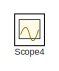
[diagram: root canvas - part 1/2, top right region]
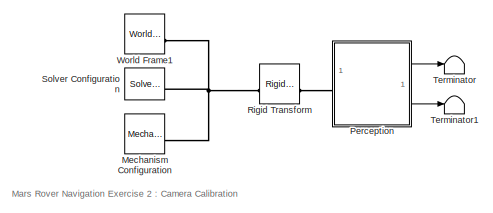
[diagram: root canvas - part 2/2, left side, full height]
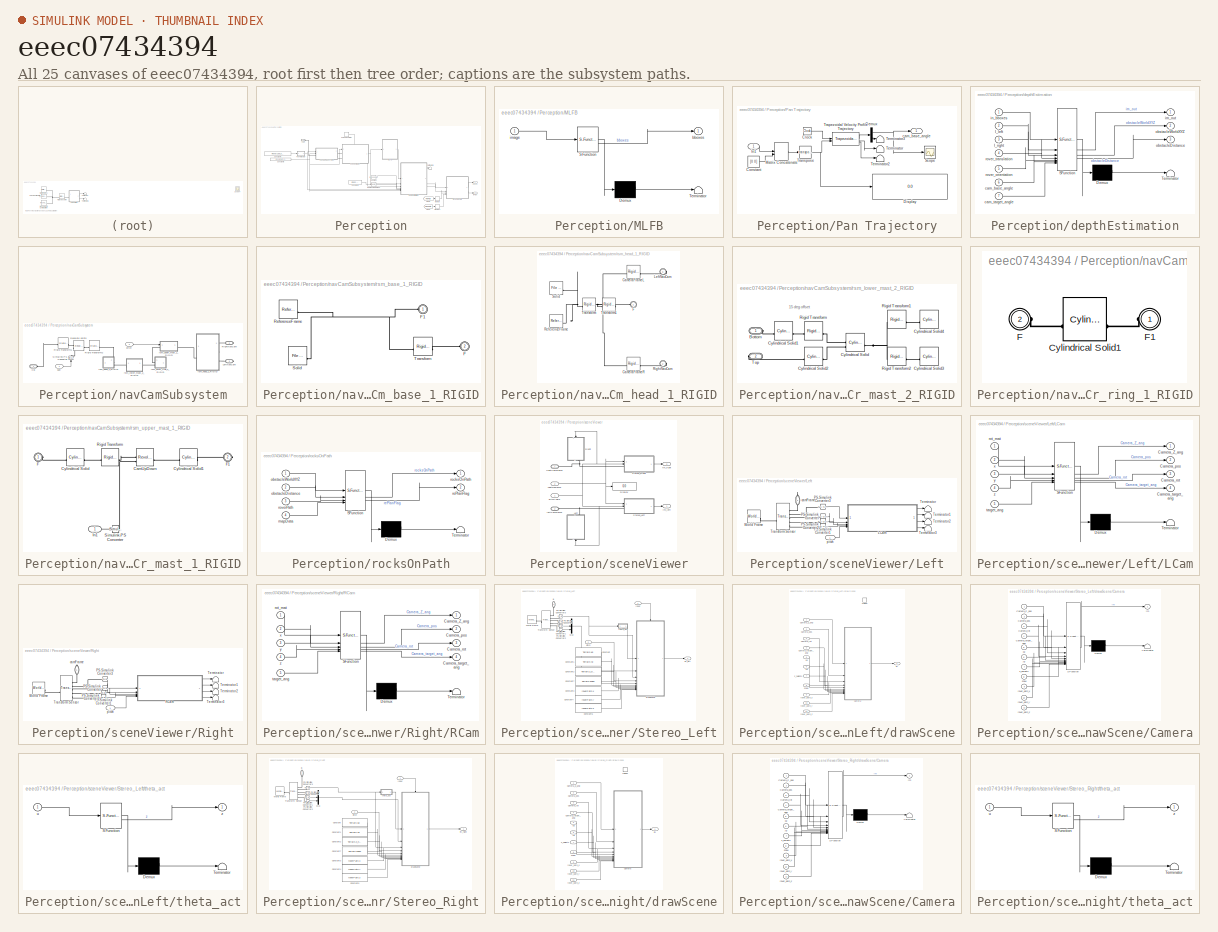
[diagram: thumbnail index - all 25 canvases of the model, root first then tree order]
MODEL slx_eeec07434394
KIND model
CONFIG AbsTol = 1e-3
CONFIG EnableMultiTasking = on
CONFIG FixedStep = 1e-2
CONFIG MaxStep = 0.1
CONFIG MinStep = auto
CONFIG RelTol = 1e-3
CONFIG SampleTimeConstraint = Unconstrained
CONFIG SolverName = ode23t
CONFIG StartFcn = mars_rover_sim_callback
CONFIG StartTime = 0.0
CONFIG StopTime = 120
WORKSPACE source: MATLAB code (in-file)
WORKSPACE code: addpath("mars_rover_helpers");
WORKSPACE mdlpath = ['mars_rover_data',filesep,'mars_rover_arm']
WORKSPACE code: load_system(mdlpath);
WORKSPACE imdata = zeros(3,3,3)
WORKSPACE Kp_steer = 1
WORKSPACE Ki_steer = 1
WORKSPACE Kd_steer = 1
WORKSPACE Kp = 1
WORKSPACE Ki = 1
WORKSPACE Kd = 1
BLOCK [Reference] Mechanism Configuration  REF=sm_lib/Utilities/Mechanism
Configuration
  SourceBlock = sm_lib/Utilities/Mechanism\nConfiguration
  SourceType = Mechanism\nConfiguration
BLOCK [SubSystem] Perception
BLOCK [Constant] Perception/Constant
  Commented = on
  Value = [5 24 2.654]
BLOCK [Constant] Perception/Constant1
  Commented = on
  Value = [ 2.262   -4.305    -0.8046]
BLOCK [Constant] Perception/Constant4
  Value = Rover.cam_pan_range.*Rover.cam_pan_flag
BLOCK [Constant] Perception/Constant5
  Value = Rover.cam_pitch
BLOCK [From] Perception/From3
  Commented = on
  GotoTag = RefPath
BLOCK [From] Perception/From4
  Commented = on
  GotoTag = mapData
BLOCK [SubSystem] Perception/MLFB
  Commented = on
  ErrorFcn = Stateflow.Translate.translate
  PermitHierarchicalResolution = ExplicitOnly
  SFBlockType = MATLAB Function
  TreatAsAtomicUnit = on
BLOCK [Demux] Perception/MLFB/ Demux 
  Outputs = 1
BLOCK [S-Function] Perception/MLFB/ SFunction 
  EnableBusSupport = on
  FunctionName = sf_sfun
  Parameters = roi,thresholdVal
  PortCounts = [1 2]
  SFcnIsStateOwnerBlock = off
  SFunctionDeploymentMode = off
  Tag = Stateflow S-Function 27
BLOCK [Terminator] Perception/MLFB/ Terminator 
BLOCK [Outport] Perception/MLFB/bboxes
BLOCK [Inport] Perception/MLFB/image
BLOCK [Memory] Perception/Memory
  Commented = on
  InitialCondition = [roverPath.x roverPath.y]
BLOCK [Memory] Perception/Memory1
  Commented = on
  InitialCondition = mapData
BLOCK [SubSystem] Perception/Pan Trajectory
BLOCK [Clock] Perception/Pan Trajectory/Clock
BLOCK [Constant] Perception/Pan Trajectory/Constant
  Value = [0 0]
BLOCK [Demux] Perception/Pan Trajectory/Demux
  Outputs = 2
BLOCK [Display] Perception/Pan Trajectory/Display
  Decimation = 1
BLOCK [Inport] Perception/Pan Trajectory/In1
BLOCK [Concatenate] Perception/Pan Trajectory/Matrix Concatenate
  ConcatenateDimension = 2
  Mode = Multidimensional array
BLOCK [Scope] Perception/Pan Trajectory/Scope
  Floating = off
  NumInputPorts = 1
  ScopeSpecificationString = Simulink.scopes.TimeScopeBlockCfg('CurrentConfiguration', extmgr.ConfigurationSet(extmgr.Configuration('Core','General UI',true),extmgr.Configuration('Core','Source UI',true),extmgr.Configuration('Sources','WiredSimulink',true,'DataLoggingVariableName','ScopeData1'),extmgr.Configuration('Visuals','Time Domain',true,'SerializedDisplays',{struct('MinYLimReal','-107.77344','MaxYLimReal','69.96094','Y...<+1422ch>
BLOCK [Terminator] Perception/Pan Trajectory/Terminator
BLOCK [Terminator] Perception/Pan Trajectory/Terminator2
BLOCK [Terminator] Perception/Pan Trajectory/Terminator3
BLOCK [Math] Perception/Pan Trajectory/Transpose
  Operator = transpose
BLOCK [Reference] Perception/Pan Trajectory/Trapezoidal Velocity Profile Trajectory  REF=robotcorelib/Trapezoidal Velocity Profile Trajectory
  SourceBlock = robotcorelib/Trapezoidal Velocity Profile Trajectory
  SourceType = robotics.slcore.internal.block.TrapVelTrajSys
BLOCK [Outport] Perception/Pan Trajectory/cam_base_angle
BLOCK [DiscretePulseGenerator] Perception/Pulse Generator
  Commented = on
  Period = Rover.detection_sample_time
  PhaseDelay = Rover.detection_phaseDelay
  PulseType = Time based
BLOCK [Reference] Perception/Radians to Degrees  REF=simulink_extras/Transformations/Radians
to Degrees
  Commented = on
  SourceBlock = simulink_extras/Transformations/Radians\nto Degrees
  SourceType = RadiansToDegrees
BLOCK [Terminator] Perception/Terminator1
BLOCK [PMIOPort] Perception/cam
  Side = Left
BLOCK [SubSystem] Perception/depthEstimation
  Commented = on
  ErrorFcn = Stateflow.Translate.translate
  PermitHierarchicalResolution = ExplicitOnly
  SFBlockType = MATLAB Function
  TreatAsAtomicUnit = on
BLOCK [Demux] Perception/depthEstimation/ Demux 
  Outputs = 1
BLOCK [S-Function] Perception/depthEstimation/ SFunction 
  EnableBusSupport = on
  FunctionName = sf_sfun
  PortCounts = [7 4]
  SFcnIsStateOwnerBlock = off
  SFunctionDeploymentMode = off
  Tag = Stateflow S-Function 28
BLOCK [Terminator] Perception/depthEstimation/ Terminator 
BLOCK [Inport] Perception/depthEstimation/I_left
  Port = 2
BLOCK [Inport] Perception/depthEstimation/I_right
  Port = 3
BLOCK [Inport] Perception/depthEstimation/cam_base_angle
  Port = 6
BLOCK [Inport] Perception/depthEstimation/cam_target_angle
  Port = 7
BLOCK [Outport] Perception/depthEstimation/im_out
BLOCK [Inport] Perception/depthEstimation/in_bboxes
BLOCK [Outport] Perception/depthEstimation/obstacleDistance
  Port = 3
BLOCK [Outport] Perception/depthEstimation/obstacleWorldXYZ
  Port = 2
BLOCK [Inport] Perception/depthEstimation/rover_orientation
  Port = 5
BLOCK [Inport] Perception/depthEstimation/rover_translation
  Port = 4
BLOCK [SubSystem] Perception/navCamSubsystem
  PortSchema = {"entries":[{"content":{"sides":[{"content":{"connectorIds":["LConn1","In1","In2"]},"type":"ConnectorPlacement.EquallySpacedRectSide","uuid":"2deb6c0b-0fb4-445b-86e3-b1fc7203c2ed"},{"content":{"connectorIds":["RConn1","RConn2"],"side":"RIGHT"},"type":"ConnectorPlacement.EquallySpacedRectSide","uuid":"96d5d272-26bd-434a-b8d4-4dbdb87bfabc"},{"content":{"connectorIds":[],"side":"TOP"},"type":"Connect...<+266ch>
BLOCK [PMIOPort] Perception/navCamSubsystem/CB
  Side = Left
BLOCK [PMIOPort] Perception/navCamSubsystem/LeftNavCam
  Port = 3
  Side = Right
BLOCK [Reference] Perception/navCamSubsystem/Revolute Joint5  REF=sm_lib/Joints/Revolute Joint
  SourceBlock = sm_lib/Joints/Revolute Joint
  SourceType = Revolute Joint
BLOCK [PMIOPort] Perception/navCamSubsystem/RightNavCam
  Port = 2
  Side = Right
BLOCK [Reference] Perception/navCamSubsystem/Rigid Transform1  REF=sm_lib/Frames and
Transforms/Rigid
Transform
  SourceBlock = sm_lib/Frames and\nTransforms/Rigid\nTransform
  SourceType = Rigid\nTransform
BLOCK [Reference] Perception/navCamSubsystem/Rigid Transform2  REF=sm_lib/Frames and
Transforms/Rigid
Transform
  SourceBlock = sm_lib/Frames and\nTransforms/Rigid\nTransform
  SourceType = Rigid\nTransform
BLOCK [Reference] Perception/navCamSubsystem/Simulink-PS Converter  REF=nesl_utility/Simulink-PS
Converter
  NameLocation = right
  SourceBlock = nesl_utility/Simulink-PS\nConverter
  SourceType = Simulink-PS\nConverter
BLOCK [Inport] Perception/navCamSubsystem/pan
BLOCK [Inport] Perception/navCamSubsystem/pitch
  Port = 2
BLOCK [SubSystem] Perception/navCamSubsystem/rsm_base_1_RIGID
BLOCK [PMIOPort] Perception/navCamSubsystem/rsm_base_1_RIGID/F
  Port = 2
  Side = Left
BLOCK [PMIOPort] Perception/navCamSubsystem/rsm_base_1_RIGID/F1
  Side = Left
BLOCK [Reference] Perception/navCamSubsystem/rsm_base_1_RIGID/ReferenceFrame  REF=sm_lib/Frames and
Transforms/Reference
Frame
  SourceBlock = sm_lib/Frames and\nTransforms/Reference\nFrame
  SourceType = Reference\nFrame
BLOCK [Reference] Perception/navCamSubsystem/rsm_base_1_RIGID/Solid  REF=sm_lib/Body Elements/File Solid
  SourceBlock = sm_lib/Body Elements/File Solid
  SourceType = File Solid
BLOCK [Reference] Perception/navCamSubsystem/rsm_base_1_RIGID/Transform  REF=sm_lib/Frames and
Transforms/Rigid
Transform
  SourceBlock = sm_lib/Frames and\nTransforms/Rigid\nTransform
  SourceType = Rigid\nTransform
BLOCK [SubSystem] Perception/navCamSubsystem/rsm_head_1_RIGID
BLOCK [Reference] Perception/navCamSubsystem/rsm_head_1_RIGID/CameraFrameL  REF=sm_lib/Frames and
Transforms/Rigid
Transform
  SourceBlock = sm_lib/Frames and\nTransforms/Rigid\nTransform
  SourceType = Rigid\nTransform
BLOCK [Reference] Perception/navCamSubsystem/rsm_head_1_RIGID/CameraFrameR  REF=sm_lib/Frames and
Transforms/Rigid
Transform
  SourceBlock = sm_lib/Frames and\nTransforms/Rigid\nTransform
  SourceType = Rigid\nTransform
BLOCK [PMIOPort] Perception/navCamSubsystem/rsm_head_1_RIGID/F
  Side = Left
BLOCK [PMIOPort] Perception/navCamSubsystem/rsm_head_1_RIGID/LeftNavCam
  Port = 3
  Side = Right
BLOCK [Reference] Perception/navCamSubsystem/rsm_head_1_RIGID/ReferenceFrame  REF=sm_lib/Frames and
Transforms/Reference
Frame
  SourceBlock = sm_lib/Frames and\nTransforms/Reference\nFrame
  SourceType = Reference\nFrame
BLOCK [PMIOPort] Perception/navCamSubsystem/rsm_head_1_RIGID/RightNavCam
  Port = 2
  Side = Right
BLOCK [Reference] Perception/navCamSubsystem/rsm_head_1_RIGID/Solid  REF=sm_lib/Body Elements/File Solid
  SourceBlock = sm_lib/Body Elements/File Solid
  SourceType = File Solid
BLOCK [Reference] Perception/navCamSubsystem/rsm_head_1_RIGID/Transform  REF=sm_lib/Frames and
Transforms/Rigid
Transform
  SourceBlock = sm_lib/Frames and\nTransforms/Rigid\nTransform
  SourceType = Rigid\nTransform
BLOCK [Reference] Perception/navCamSubsystem/rsm_head_1_RIGID/Transform1  REF=sm_lib/Frames and
Transforms/Rigid
Transform
  SourceBlock = sm_lib/Frames and\nTransforms/Rigid\nTransform
  SourceType = Rigid\nTransform
BLOCK [SubSystem] Perception/navCamSubsystem/rsm_lower_mast_2_RIGID
BLOCK [PMIOPort] Perception/navCamSubsystem/rsm_lower_mast_2_RIGID/Bottom
  Side = Left
BLOCK [Reference] Perception/navCamSubsystem/rsm_lower_mast_2_RIGID/Cylindrical Solid  REF=sm_lib/Body Elements/Cylindrical Solid
  SourceBlock = sm_lib/Body Elements/Cylindrical Solid
  SourceType = Cylindrical Solid
BLOCK [Reference] Perception/navCamSubsystem/rsm_lower_mast_2_RIGID/Cylindrical Solid1  REF=sm_lib/Body Elements/Cylindrical Solid
  SourceBlock = sm_lib/Body Elements/Cylindrical Solid
  SourceType = Cylindrical Solid
BLOCK [Reference] Perception/navCamSubsystem/rsm_lower_mast_2_RIGID/Cylindrical Solid2  REF=sm_lib/Body Elements/Cylindrical Solid
  SourceBlock = sm_lib/Body Elements/Cylindrical Solid
  SourceType = Cylindrical Solid
BLOCK [Reference] Perception/navCamSubsystem/rsm_lower_mast_2_RIGID/Cylindrical Solid3  REF=sm_lib/Body Elements/Cylindrical Solid
  SourceBlock = sm_lib/Body Elements/Cylindrical Solid
  SourceType = Cylindrical Solid
BLOCK [Reference] Perception/navCamSubsystem/rsm_lower_mast_2_RIGID/Cylindrical Solid4  REF=sm_lib/Body Elements/Cylindrical Solid
  SourceBlock = sm_lib/Body Elements/Cylindrical Solid
  SourceType = Cylindrical Solid
BLOCK [Reference] Perception/navCamSubsystem/rsm_lower_mast_2_RIGID/Rigid Transform  REF=sm_lib/Frames and
Transforms/Rigid
Transform
  NameLocation = top
  SourceBlock = sm_lib/Frames and\nTransforms/Rigid\nTransform
  SourceType = Rigid\nTransform
BLOCK [Reference] Perception/navCamSubsystem/rsm_lower_mast_2_RIGID/Rigid Transform1  REF=sm_lib/Frames and
Transforms/Rigid
Transform
  SourceBlock = sm_lib/Frames and\nTransforms/Rigid\nTransform
  SourceType = Rigid\nTransform
BLOCK [Reference] Perception/navCamSubsystem/rsm_lower_mast_2_RIGID/Rigid Transform2  REF=sm_lib/Frames and
Transforms/Rigid
Transform
  SourceBlock = sm_lib/Frames and\nTransforms/Rigid\nTransform
  SourceType = Rigid\nTransform
BLOCK [PMIOPort] Perception/navCamSubsystem/rsm_lower_mast_2_RIGID/Top
  Port = 2
  Side = Right
BLOCK [SubSystem] Perception/navCamSubsystem/rsm_outer_ring_1_RIGID
BLOCK [Reference] Perception/navCamSubsystem/rsm_outer_ring_1_RIGID/Cylindrical Solid1  REF=sm_lib/Body Elements/Cylindrical Solid
  SourceBlock = sm_lib/Body Elements/Cylindrical Solid
  SourceType = Cylindrical Solid
BLOCK [PMIOPort] Perception/navCamSubsystem/rsm_outer_ring_1_RIGID/F
  Port = 2
  Side = Left
BLOCK [PMIOPort] Perception/navCamSubsystem/rsm_outer_ring_1_RIGID/F1
  Side = Left
BLOCK [SubSystem] Perception/navCamSubsystem/rsm_upper_mast_1_RIGID
BLOCK [Reference] Perception/navCamSubsystem/rsm_upper_mast_1_RIGID/CamUpDown  REF=sm_lib/Joints/Revolute Joint
  SourceBlock = sm_lib/Joints/Revolute Joint
  SourceType = Revolute Joint
BLOCK [Reference] Perception/navCamSubsystem/rsm_upper_mast_1_RIGID/Cylindrical Solid  REF=sm_lib/Body Elements/Cylindrical Solid
  NameLocation = top
  SourceBlock = sm_lib/Body Elements/Cylindrical Solid
  SourceType = Cylindrical Solid
BLOCK [Reference] Perception/navCamSubsystem/rsm_upper_mast_1_RIGID/Cylindrical Solid1  REF=sm_lib/Body Elements/Cylindrical Solid
  NameLocation = top
  SourceBlock = sm_lib/Body Elements/Cylindrical Solid
  SourceType = Cylindrical Solid
BLOCK [PMIOPort] Perception/navCamSubsystem/rsm_upper_mast_1_RIGID/F
  Side = Left
BLOCK [PMIOPort] Perception/navCamSubsystem/rsm_upper_mast_1_RIGID/F1
  Port = 2
  Side = Right
BLOCK [Inport] Perception/navCamSubsystem/rsm_upper_mast_1_RIGID/In1
BLOCK [Reference] Perception/navCamSubsystem/rsm_upper_mast_1_RIGID/Rigid Transform  REF=sm_lib/Frames and
Transforms/Rigid
Transform
  SourceBlock = sm_lib/Frames and\nTransforms/Rigid\nTransform
  SourceType = Rigid\nTransform
BLOCK [Reference] Perception/navCamSubsystem/rsm_upper_mast_1_RIGID/Simulink-PS Converter  REF=nesl_utility/Simulink-PS
Converter
  SourceBlock = nesl_utility/Simulink-PS\nConverter
  SourceType = Simulink-PS\nConverter
BLOCK [Outport] Perception/obLoc
  Port = 2
BLOCK [Outport] Perception/rePlan
BLOCK [SubSystem] Perception/rocksOnPath
  Commented = on
  ErrorFcn = Stateflow.Translate.translate
  PermitHierarchicalResolution = ExplicitOnly
  SFBlockType = MATLAB Function
  TreatAsAtomicUnit = on
BLOCK [Demux] Perception/rocksOnPath/ Demux 
  Outputs = 1
BLOCK [S-Function] Perception/rocksOnPath/ SFunction 
  EnableBusSupport = on
  FunctionName = sf_sfun
  PortCounts = [4 3]
  SFcnIsStateOwnerBlock = off
  SFunctionDeploymentMode = off
  Tag = Stateflow S-Function 29
BLOCK [Terminator] Perception/rocksOnPath/ Terminator 
BLOCK [Inport] Perception/rocksOnPath/mapData
  Port = 4
BLOCK [Inport] Perception/rocksOnPath/obstacleDistance
  Port = 2
BLOCK [Inport] Perception/rocksOnPath/obstacleWorldXYZ
BLOCK [Outport] Perception/rocksOnPath/rePlanFlag
  Port = 2
BLOCK [Outport] Perception/rocksOnPath/rocksOnPath
BLOCK [Inport] Perception/rocksOnPath/roverPath
  Port = 3
BLOCK [SubSystem] Perception/sceneViewer
  PortSchema = {"entries":[{"content":{"sides":[{"content":{"connectorIds":["LConn1","LConn2","In1"]},"type":"ConnectorPlacement.EquallySpacedRectSide","uuid":"3e389f59-5740-42d0-b219-868887290247"},{"content":{"connectorIds":["Out1","Out2"],"side":"RIGHT"},"type":"ConnectorPlacement.EquallySpacedRectSide","uuid":"8071baf0-f328-4328-afc3-7bbca75f94e9"},{"content":{"connectorIds":["In2"],"side":"TOP"},"type":"Con...<+270ch>
BLOCK [Display] Perception/sceneViewer/Display
  Decimation = 1
BLOCK [SubSystem] Perception/sceneViewer/Left
  NameLocation = right
BLOCK [SubSystem] Perception/sceneViewer/Left/LCam
  ErrorFcn = Stateflow.Translate.translate
  PermitHierarchicalResolution = ExplicitOnly
  SFBlockType = MATLAB Function
  TreatAsAtomicUnit = on
BLOCK [Demux] Perception/sceneViewer/Left/LCam/ Demux 
  Outputs = 1
BLOCK [S-Function] Perception/sceneViewer/Left/LCam/ SFunction 
  EnableBusSupport = on
  FunctionName = sf_sfun
  PortCounts = [5 5]
  SFcnIsStateOwnerBlock = off
  SFunctionDeploymentMode = off
  Tag = Stateflow S-Function 30
BLOCK [Terminator] Perception/sceneViewer/Left/LCam/ Terminator 
BLOCK [Outport] Perception/sceneViewer/Left/LCam/Camera_Z_ang
BLOCK [Outport] Perception/sceneViewer/Left/LCam/Camera_pos
  Port = 2
BLOCK [Outport] Perception/sceneViewer/Left/LCam/Camera_rot
  Port = 3
BLOCK [Outport] Perception/sceneViewer/Left/LCam/Camera_target_ang
  Port = 4
BLOCK [Inport] Perception/sceneViewer/Left/LCam/rot_mat
BLOCK [Inport] Perception/sceneViewer/Left/LCam/target_ang
  Port = 5
BLOCK [Inport] Perception/sceneViewer/Left/LCam/x
  Port = 2
BLOCK [Inport] Perception/sceneViewer/Left/LCam/y
  Port = 3
BLOCK [Inport] Perception/sceneViewer/Left/LCam/z
  Port = 4
BLOCK [Reference] Perception/sceneViewer/Left/PS-Simulink Converter  REF=nesl_utility/PS-Simulink
Converter
  SourceBlock = nesl_utility/PS-Simulink\nConverter
  SourceType = PS-Simulink\nConverter
BLOCK [Reference] Perception/sceneViewer/Left/PS-Simulink Converter1  REF=nesl_utility/PS-Simulink
Converter
  SourceBlock = nesl_utility/PS-Simulink\nConverter
  SourceType = PS-Simulink\nConverter
BLOCK [Reference] Perception/sceneViewer/Left/PS-Simulink Converter2  REF=nesl_utility/PS-Simulink
Converter
  SourceBlock = nesl_utility/PS-Simulink\nConverter
  SourceType = PS-Simulink\nConverter
BLOCK [Reference] Perception/sceneViewer/Left/PS-Simulink Converter3  REF=nesl_utility/PS-Simulink
Converter
  SourceBlock = nesl_utility/PS-Simulink\nConverter
  SourceType = PS-Simulink\nConverter
BLOCK [Terminator] Perception/sceneViewer/Left/Terminator
BLOCK [Terminator] Perception/sceneViewer/Left/Terminator1
BLOCK [Terminator] Perception/sceneViewer/Left/Terminator2
BLOCK [Terminator] Perception/sceneViewer/Left/Terminator3
BLOCK [Reference] Perception/sceneViewer/Left/Transform Sensor  REF=sm_lib/Frames and
Transforms/Transform
Sensor
  SourceBlock = sm_lib/Frames and\nTransforms/Transform\nSensor
  SourceType = Transform\nSensor
BLOCK [Reference] Perception/sceneViewer/Left/World Frame  REF=sm_lib/Frames and
Transforms/World Frame
  SourceBlock = sm_lib/Frames and\nTransforms/World Frame
  SourceType = World Frame
BLOCK [PMIOPort] Perception/sceneViewer/Left/camFrame
  NameLocation = left
  Side = Right
BLOCK [Inport] Perception/sceneViewer/Left/pitch
BLOCK [SubSystem] Perception/sceneViewer/Right
  NameLocation = right
BLOCK [Reference] Perception/sceneViewer/Right/PS-Simulink Converter  REF=nesl_utility/PS-Simulink
Converter
  SourceBlock = nesl_utility/PS-Simulink\nConverter
  SourceType = PS-Simulink\nConverter
BLOCK [Reference] Perception/sceneViewer/Right/PS-Simulink Converter1  REF=nesl_utility/PS-Simulink
Converter
  SourceBlock = nesl_utility/PS-Simulink\nConverter
  SourceType = PS-Simulink\nConverter
BLOCK [Reference] Perception/sceneViewer/Right/PS-Simulink Converter2  REF=nesl_utility/PS-Simulink
Converter
  SourceBlock = nesl_utility/PS-Simulink\nConverter
  SourceType = PS-Simulink\nConverter
BLOCK [Reference] Perception/sceneViewer/Right/PS-Simulink Converter3  REF=nesl_utility/PS-Simulink
Converter
  SourceBlock = nesl_utility/PS-Simulink\nConverter
  SourceType = PS-Simulink\nConverter
BLOCK [SubSystem] Perception/sceneViewer/Right/RCam
  ErrorFcn = Stateflow.Translate.translate
  PermitHierarchicalResolution = ExplicitOnly
  SFBlockType = MATLAB Function
  TreatAsAtomicUnit = on
BLOCK [Demux] Perception/sceneViewer/Right/RCam/ Demux 
  Outputs = 1
BLOCK [S-Function] Perception/sceneViewer/Right/RCam/ SFunction 
  EnableBusSupport = on
  FunctionName = sf_sfun
  PortCounts = [5 5]
  SFcnIsStateOwnerBlock = off
  SFunctionDeploymentMode = off
  Tag = Stateflow S-Function 31
BLOCK [Terminator] Perception/sceneViewer/Right/RCam/ Terminator 
BLOCK [Outport] Perception/sceneViewer/Right/RCam/Camera_Z_ang
BLOCK [Outport] Perception/sceneViewer/Right/RCam/Camera_pos
  Port = 2
BLOCK [Outport] Perception/sceneViewer/Right/RCam/Camera_rot
  Port = 3
BLOCK [Outport] Perception/sceneViewer/Right/RCam/Camera_target_ang
  Port = 4
BLOCK [Inport] Perception/sceneViewer/Right/RCam/rot_mat
BLOCK [Inport] Perception/sceneViewer/Right/RCam/target_ang
  Port = 5
BLOCK [Inport] Perception/sceneViewer/Right/RCam/x
  Port = 2
BLOCK [Inport] Perception/sceneViewer/Right/RCam/y
  Port = 3
BLOCK [Inport] Perception/sceneViewer/Right/RCam/z
  Port = 4
BLOCK [Terminator] Perception/sceneViewer/Right/Terminator
BLOCK [Terminator] Perception/sceneViewer/Right/Terminator1
BLOCK [Terminator] Perception/sceneViewer/Right/Terminator2
BLOCK [Terminator] Perception/sceneViewer/Right/Terminator3
BLOCK [Reference] Perception/sceneViewer/Right/Transform Sensor  REF=sm_lib/Frames and
Transforms/Transform
Sensor
  SourceBlock = sm_lib/Frames and\nTransforms/Transform\nSensor
  SourceType = Transform\nSensor
BLOCK [Reference] Perception/sceneViewer/Right/World Frame  REF=sm_lib/Frames and
Transforms/World Frame
  SourceBlock = sm_lib/Frames and\nTransforms/World Frame
  SourceType = World Frame
BLOCK [PMIOPort] Perception/sceneViewer/Right/camFrame
  NameLocation = left
  Side = Right
BLOCK [Inport] Perception/sceneViewer/Right/pitch
BLOCK [SubSystem] Perception/sceneViewer/Stereo_Left
  Commented = on
BLOCK [PMIOPort] Perception/sceneViewer/Stereo_Left/B
  NameLocation = left
  Side = Left
BLOCK [Constant] Perception/sceneViewer/Stereo_Left/Constant
  Value = Terrain.xg
BLOCK [Constant] Perception/sceneViewer/Stereo_Left/Constant1
  Value = Terrain.yg
BLOCK [Constant] Perception/sceneViewer/Stereo_Left/Constant2
  Value = Terrain.z_heights
BLOCK [Constant] Perception/sceneViewer/Stereo_Left/Constant3
  Value = roverPath.x
BLOCK [Constant] Perception/sceneViewer/Stereo_Left/Constant4
  Value = roverPath.y
BLOCK [Constant] Perception/sceneViewer/Stereo_Left/Constant5
  Value = roverPath.z
BLOCK [Constant] Perception/sceneViewer/Stereo_Left/Constant7
  Value = Terrain.znew
BLOCK [Inport] Perception/sceneViewer/Stereo_Left/Input
BLOCK [Mux] Perception/sceneViewer/Stereo_Left/Mux
  DisplayOption = bar
  Inputs = 3
BLOCK [Reference] Perception/sceneViewer/Stereo_Left/PS-Simulink Converter  REF=nesl_utility/PS-Simulink
Converter
  SourceBlock = nesl_utility/PS-Simulink\nConverter
  SourceType = PS-Simulink\nConverter
BLOCK [Reference] Perception/sceneViewer/Stereo_Left/PS-Simulink Converter1  REF=nesl_utility/PS-Simulink
Converter
  SourceBlock = nesl_utility/PS-Simulink\nConverter
  SourceType = PS-Simulink\nConverter
BLOCK [Reference] Perception/sceneViewer/Stereo_Left/PS-Simulink Converter2  REF=nesl_utility/PS-Simulink
Converter
  SourceBlock = nesl_utility/PS-Simulink\nConverter
  SourceType = PS-Simulink\nConverter
BLOCK [Reference] Perception/sceneViewer/Stereo_Left/PS-Simulink Converter3  REF=nesl_utility/PS-Simulink
Converter
  SourceBlock = nesl_utility/PS-Simulink\nConverter
  SourceType = PS-Simulink\nConverter
BLOCK [Reference] Perception/sceneViewer/Stereo_Left/Transform Sensor  REF=sm_lib/Frames and
Transforms/Transform
Sensor
  SourceBlock = sm_lib/Frames and\nTransforms/Transform\nSensor
  SourceType = Transform\nSensor
BLOCK [Reference] Perception/sceneViewer/Stereo_Left/World Frame  REF=sm_lib/Frames and
Transforms/World Frame
  SourceBlock = sm_lib/Frames and\nTransforms/World Frame
  SourceType = World Frame
BLOCK [SubSystem] Perception/sceneViewer/Stereo_Left/drawScene
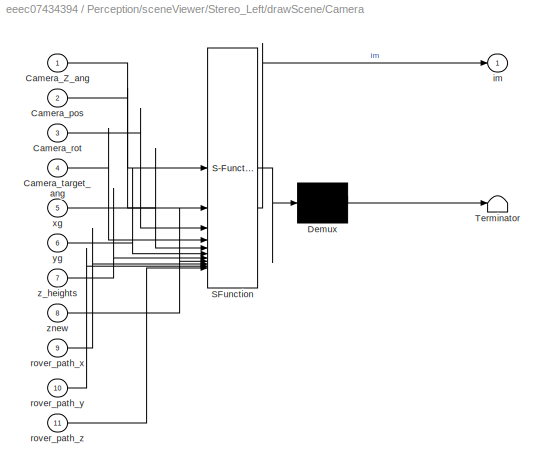
BLOCK [SubSystem] Perception/sceneViewer/Stereo_Left/drawScene/Camera
  ErrorFcn = Stateflow.Translate.translate
  PermitHierarchicalResolution = ExplicitOnly
  SFBlockType = MATLAB Function
  TreatAsAtomicUnit = on
BLOCK [Demux] Perception/sceneViewer/Stereo_Left/drawScene/Camera/ Demux 
  Outputs = 1
BLOCK [S-Function] Perception/sceneViewer/Stereo_Left/drawScene/Camera/ SFunction 
  EnableBusSupport = on
  FunctionName = sf_sfun
  PortCounts = [11 2]
  SFcnIsStateOwnerBlock = off
  SFunctionDeploymentMode = off
  Tag = Stateflow S-Function 32
BLOCK [Terminator] Perception/sceneViewer/Stereo_Left/drawScene/Camera/ Terminator 
BLOCK [Inport] Perception/sceneViewer/Stereo_Left/drawScene/Camera/Camera_Z_ang
BLOCK [Inport] Perception/sceneViewer/Stereo_Left/drawScene/Camera/Camera_pos
  Port = 2
BLOCK [Inport] Perception/sceneViewer/Stereo_Left/drawScene/Camera/Camera_rot
  Port = 3
BLOCK [Inport] Perception/sceneViewer/Stereo_Left/drawScene/Camera/Camera_target_ang
  Port = 4
BLOCK [Outport] Perception/sceneViewer/Stereo_Left/drawScene/Camera/im
BLOCK [Inport] Perception/sceneViewer/Stereo_Left/drawScene/Camera/rover_path_x
  Port = 9
BLOCK [Inport] Perception/sceneViewer/Stereo_Left/drawScene/Camera/rover_path_y
  Port = 10
BLOCK [Inport] Perception/sceneViewer/Stereo_Left/drawScene/Camera/rover_path_z
  Port = 11
BLOCK [Inport] Perception/sceneViewer/Stereo_Left/drawScene/Camera/xg
  Port = 5
BLOCK [Inport] Perception/sceneViewer/Stereo_Left/drawScene/Camera/yg
  Port = 6
BLOCK [Inport] Perception/sceneViewer/Stereo_Left/drawScene/Camera/z_heights
  Port = 7
BLOCK [Inport] Perception/sceneViewer/Stereo_Left/drawScene/Camera/znew
  Port = 8
BLOCK [Inport] Perception/sceneViewer/Stereo_Left/drawScene/Camera_Z_ang
BLOCK [Inport] Perception/sceneViewer/Stereo_Left/drawScene/Camera_pos
  Port = 2
BLOCK [Inport] Perception/sceneViewer/Stereo_Left/drawScene/Camera_rot
  Port = 3
BLOCK [Inport] Perception/sceneViewer/Stereo_Left/drawScene/Camera_target_ang
  Port = 4
BLOCK [TriggerPort] Perception/sceneViewer/Stereo_Left/drawScene/Trigger
  InitialTriggerSignalState = negative
  PortDimensions = 1
  StatesWhenEnabling = held
  VariantControl = (inherit)
BLOCK [Outport] Perception/sceneViewer/Stereo_Left/drawScene/im
BLOCK [Inport] Perception/sceneViewer/Stereo_Left/drawScene/rover_path_x
  Port = 9
BLOCK [Inport] Perception/sceneViewer/Stereo_Left/drawScene/rover_path_y
  Port = 10
BLOCK [Inport] Perception/sceneViewer/Stereo_Left/drawScene/rover_path_z
  Port = 11
BLOCK [Inport] Perception/sceneViewer/Stereo_Left/drawScene/xg
  Port = 5
BLOCK [Inport] Perception/sceneViewer/Stereo_Left/drawScene/yg
  Port = 6
BLOCK [Inport] Perception/sceneViewer/Stereo_Left/drawScene/z_heights
  Port = 7
BLOCK [Inport] Perception/sceneViewer/Stereo_Left/drawScene/znew
  Port = 8
BLOCK [Outport] Perception/sceneViewer/Stereo_Left/im_left
BLOCK [Inport] Perception/sceneViewer/Stereo_Left/pitch
  Port = 2
BLOCK [SubSystem] Perception/sceneViewer/Stereo_Left/theta_act
  ErrorFcn = Stateflow.Translate.translate
  PermitHierarchicalResolution = ExplicitOnly
  SFBlockType = MATLAB Function
  TreatAsAtomicUnit = on
BLOCK [Demux] Perception/sceneViewer/Stereo_Left/theta_act/ Demux 
  Outputs = 1
BLOCK [S-Function] Perception/sceneViewer/Stereo_Left/theta_act/ SFunction 
  EnableBusSupport = on
  FunctionName = sf_sfun
  PortCounts = [1 2]
  SFcnIsStateOwnerBlock = off
  SFunctionDeploymentMode = off
  Tag = Stateflow S-Function 33
BLOCK [Terminator] Perception/sceneViewer/Stereo_Left/theta_act/ Terminator 
BLOCK [Inport] Perception/sceneViewer/Stereo_Left/theta_act/u
BLOCK [Outport] Perception/sceneViewer/Stereo_Left/theta_act/z
BLOCK [SubSystem] Perception/sceneViewer/Stereo_Right
  Commented = on
BLOCK [PMIOPort] Perception/sceneViewer/Stereo_Right/B
  NameLocation = left
  Side = Left
BLOCK [Constant] Perception/sceneViewer/Stereo_Right/Constant
  Value = Terrain.xg
BLOCK [Constant] Perception/sceneViewer/Stereo_Right/Constant1
  Value = Terrain.yg
BLOCK [Constant] Perception/sceneViewer/Stereo_Right/Constant2
  Value = Terrain.z_heights
BLOCK [Constant] Perception/sceneViewer/Stereo_Right/Constant3
  Value = roverPath.x
BLOCK [Constant] Perception/sceneViewer/Stereo_Right/Constant4
  Value = roverPath.y
BLOCK [Constant] Perception/sceneViewer/Stereo_Right/Constant5
  Value = roverPath.z
BLOCK [Constant] Perception/sceneViewer/Stereo_Right/Constant7
  Value = Terrain.znew
BLOCK [Inport] Perception/sceneViewer/Stereo_Right/Input
BLOCK [Mux] Perception/sceneViewer/Stereo_Right/Mux
  DisplayOption = bar
  Inputs = 3
BLOCK [Reference] Perception/sceneViewer/Stereo_Right/PS-Simulink Converter  REF=nesl_utility/PS-Simulink
Converter
  SourceBlock = nesl_utility/PS-Simulink\nConverter
  SourceType = PS-Simulink\nConverter
BLOCK [Reference] Perception/sceneViewer/Stereo_Right/PS-Simulink Converter1  REF=nesl_utility/PS-Simulink
Converter
  SourceBlock = nesl_utility/PS-Simulink\nConverter
  SourceType = PS-Simulink\nConverter
BLOCK [Reference] Perception/sceneViewer/Stereo_Right/PS-Simulink Converter2  REF=nesl_utility/PS-Simulink
Converter
  SourceBlock = nesl_utility/PS-Simulink\nConverter
  SourceType = PS-Simulink\nConverter
BLOCK [Reference] Perception/sceneViewer/Stereo_Right/PS-Simulink Converter3  REF=nesl_utility/PS-Simulink
Converter
  SourceBlock = nesl_utility/PS-Simulink\nConverter
  SourceType = PS-Simulink\nConverter
BLOCK [Reference] Perception/sceneViewer/Stereo_Right/Transform Sensor  REF=sm_lib/Frames and
Transforms/Transform
Sensor
  SourceBlock = sm_lib/Frames and\nTransforms/Transform\nSensor
  SourceType = Transform\nSensor
BLOCK [Reference] Perception/sceneViewer/Stereo_Right/World Frame  REF=sm_lib/Frames and
Transforms/World Frame
  SourceBlock = sm_lib/Frames and\nTransforms/World Frame
  SourceType = World Frame
BLOCK [SubSystem] Perception/sceneViewer/Stereo_Right/drawScene
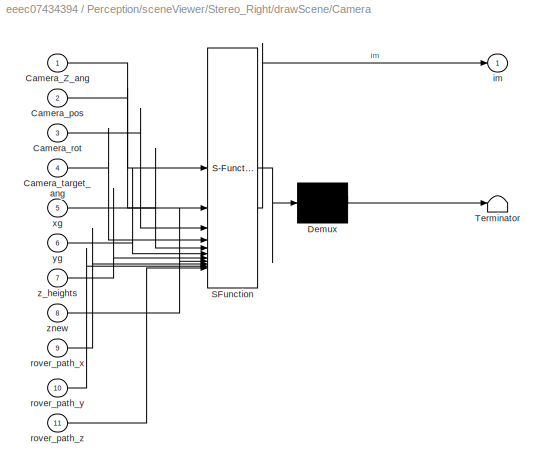
BLOCK [SubSystem] Perception/sceneViewer/Stereo_Right/drawScene/Camera
  ErrorFcn = Stateflow.Translate.translate
  PermitHierarchicalResolution = ExplicitOnly
  SFBlockType = MATLAB Function
  TreatAsAtomicUnit = on
BLOCK [Demux] Perception/sceneViewer/Stereo_Right/drawScene/Camera/ Demux 
  Outputs = 1
BLOCK [S-Function] Perception/sceneViewer/Stereo_Right/drawScene/Camera/ SFunction 
  EnableBusSupport = on
  FunctionName = sf_sfun
  PortCounts = [11 2]
  SFcnIsStateOwnerBlock = off
  SFunctionDeploymentMode = off
  Tag = Stateflow S-Function 34
BLOCK [Terminator] Perception/sceneViewer/Stereo_Right/drawScene/Camera/ Terminator 
BLOCK [Inport] Perception/sceneViewer/Stereo_Right/drawScene/Camera/Camera_Z_ang
BLOCK [Inport] Perception/sceneViewer/Stereo_Right/drawScene/Camera/Camera_pos
  Port = 2
BLOCK [Inport] Perception/sceneViewer/Stereo_Right/drawScene/Camera/Camera_rot
  Port = 3
BLOCK [Inport] Perception/sceneViewer/Stereo_Right/drawScene/Camera/Camera_target_ang
  Port = 4
BLOCK [Outport] Perception/sceneViewer/Stereo_Right/drawScene/Camera/im
BLOCK [Inport] Perception/sceneViewer/Stereo_Right/drawScene/Camera/rover_path_x
  Port = 9
BLOCK [Inport] Perception/sceneViewer/Stereo_Right/drawScene/Camera/rover_path_y
  Port = 10
BLOCK [Inport] Perception/sceneViewer/Stereo_Right/drawScene/Camera/rover_path_z
  Port = 11
BLOCK [Inport] Perception/sceneViewer/Stereo_Right/drawScene/Camera/xg
  Port = 5
BLOCK [Inport] Perception/sceneViewer/Stereo_Right/drawScene/Camera/yg
  Port = 6
BLOCK [Inport] Perception/sceneViewer/Stereo_Right/drawScene/Camera/z_heights
  Port = 7
BLOCK [Inport] Perception/sceneViewer/Stereo_Right/drawScene/Camera/znew
  Port = 8
BLOCK [Inport] Perception/sceneViewer/Stereo_Right/drawScene/Camera_Z_ang
BLOCK [Inport] Perception/sceneViewer/Stereo_Right/drawScene/Camera_pos
  Port = 2
BLOCK [Inport] Perception/sceneViewer/Stereo_Right/drawScene/Camera_rot
  Port = 3
BLOCK [Inport] Perception/sceneViewer/Stereo_Right/drawScene/Camera_target_ang
  Port = 4
BLOCK [TriggerPort] Perception/sceneViewer/Stereo_Right/drawScene/Trigger
  InitialTriggerSignalState = negative
  PortDimensions = 1
  StatesWhenEnabling = held
  VariantControl = (inherit)
BLOCK [Outport] Perception/sceneViewer/Stereo_Right/drawScene/im
BLOCK [Inport] Perception/sceneViewer/Stereo_Right/drawScene/rover_path_x
  Port = 9
BLOCK [Inport] Perception/sceneViewer/Stereo_Right/drawScene/rover_path_y
  Port = 10
BLOCK [Inport] Perception/sceneViewer/Stereo_Right/drawScene/rover_path_z
  Port = 11
BLOCK [Inport] Perception/sceneViewer/Stereo_Right/drawScene/xg
  Port = 5
BLOCK [Inport] Perception/sceneViewer/Stereo_Right/drawScene/yg
  Port = 6
BLOCK [Inport] Perception/sceneViewer/Stereo_Right/drawScene/z_heights
  Port = 7
BLOCK [Inport] Perception/sceneViewer/Stereo_Right/drawScene/znew
  Port = 8
BLOCK [Outport] Perception/sceneViewer/Stereo_Right/im_right
BLOCK [Inport] Perception/sceneViewer/Stereo_Right/pitch
  Port = 2
BLOCK [SubSystem] Perception/sceneViewer/Stereo_Right/theta_act
  ErrorFcn = Stateflow.Translate.translate
  PermitHierarchicalResolution = ExplicitOnly
  SFBlockType = MATLAB Function
  TreatAsAtomicUnit = on
BLOCK [Demux] Perception/sceneViewer/Stereo_Right/theta_act/ Demux 
  Outputs = 1
BLOCK [S-Function] Perception/sceneViewer/Stereo_Right/theta_act/ SFunction 
  EnableBusSupport = on
  FunctionName = sf_sfun
  PortCounts = [1 2]
  SFcnIsStateOwnerBlock = off
  SFunctionDeploymentMode = off
  Tag = Stateflow S-Function 35
BLOCK [Terminator] Perception/sceneViewer/Stereo_Right/theta_act/ Terminator 
BLOCK [Inport] Perception/sceneViewer/Stereo_Right/theta_act/u
BLOCK [Outport] Perception/sceneViewer/Stereo_Right/theta_act/z
BLOCK [Inport] Perception/sceneViewer/captureFrame
  Port = 2
BLOCK [Outport] Perception/sceneViewer/im_left
BLOCK [Outport] Perception/sceneViewer/im_right
  Port = 2
BLOCK [PMIOPort] Perception/sceneViewer/leftCamFrame
  Port = 2
  Side = Left
BLOCK [Inport] Perception/sceneViewer/pitchAngle
BLOCK [PMIOPort] Perception/sceneViewer/rightCamFrame
  Side = Left
BLOCK [Reference] Rigid Transform  REF=sm_lib/Frames and
Transforms/Rigid
Transform
  SourceBlock = sm_lib/Frames and\nTransforms/Rigid\nTransform
  SourceType = Rigid\nTransform
BLOCK [Scope] Scope4
  Floating = off
  IOType = viewer
  NumInputPorts = 1
  ScopeSpecificationString = Simulink.scopes.TimeScopeBlockCfg('CurrentConfiguration', extmgr.ConfigurationSet(extmgr.Configuration('Core','General UI',true),extmgr.Configuration('Core','Source UI',true),extmgr.Configuration('Sources','WiredSimulink',true,'DataLoggingVariableName','ScopeData5'),extmgr.Configuration('Visuals','Time Domain',true,'SerializedDisplays',{struct('MinYLimReal','-0.1776','MaxYLimReal','0.10656','YLabe...<+1402ch>
BLOCK [Reference] Solver Configuration  REF=nesl_utility/Solver
Configuration
  SourceBlock = nesl_utility/Solver\nConfiguration
  SourceType = Solver\nConfiguration
BLOCK [Terminator] Terminator
BLOCK [Terminator] Terminator1
BLOCK [Reference] World Frame1  REF=sm_lib/Frames and
Transforms/World Frame
  SourceBlock = sm_lib/Frames and\nTransforms/World Frame
  SourceType = World Frame
ANNOTATION (root): Mars Rover Navigation Exercise 2 : Camera Calibration
ANNOTATION Perception/navCamSubsystem/rsm_lower_mast_2_RIGID: 15 deg offset
LINE Perception/Constant1:1 -> Perception/Radians to Degrees:1
LINE Perception/Constant4:1 -> Perception/Pan Trajectory:1
NET Perception/Constant5:1 -> Perception/depthEstimation:7, Perception/navCamSubsystem:2, Perception/sceneViewer:1
LINE Perception/Constant:1 -> Perception/depthEstimation:4
LINE Perception/From3:1 -> Perception/Memory:1
LINE Perception/From4:1 -> Perception/Memory1:1
LINE Perception/MLFB:1 -> Perception/depthEstimation:1
LINE Perception/Memory1:1 -> Perception/rocksOnPath:4
LINE Perception/Memory:1 -> Perception/rocksOnPath:3
LINE Perception/Pan Trajectory/Clock:1 -> Perception/Pan Trajectory/Trapezoidal Velocity Profile Trajectory:1
LINE Perception/Pan Trajectory/Constant:1 -> Perception/Pan Trajectory/Matrix Concatenate:2
NET Perception/Pan Trajectory/Demux:1 -> Perception/Pan Trajectory/Scope:1, Perception/Pan Trajectory/cam_base_angle:1
LINE Perception/Pan Trajectory/Demux:2 -> Perception/Pan Trajectory/Terminator3:1
LINE Perception/Pan Trajectory/In1:1 -> Perception/Pan Trajectory/Matrix Concatenate:1
LINE Perception/Pan Trajectory/Matrix Concatenate:1 -> Perception/Pan Trajectory/Transpose:1
NET Perception/Pan Trajectory/Transpose:1 -> Perception/Pan Trajectory/Display:1, Perception/Pan Trajectory/Trapezoidal Velocity Profile Trajectory:2
LINE Perception/Pan Trajectory/Trapezoidal Velocity Profile Trajectory:1 -> Perception/Pan Trajectory/Demux:1
LINE Perception/Pan Trajectory/Trapezoidal Velocity Profile Trajectory:2 -> Perception/Pan Trajectory/Terminator:1
LINE Perception/Pan Trajectory/Trapezoidal Velocity Profile Trajectory:3 -> Perception/Pan Trajectory/Terminator2:1
NET Perception/Pan Trajectory:1 -> Perception/depthEstimation:6, Perception/navCamSubsystem:1
LINE Perception/Pulse Generator:1 -> Perception/sceneViewer:2
LINE Perception/Radians to Degrees:1 -> Perception/depthEstimation:5
LINE Perception/depthEstimation:1 -> Perception/Terminator1:1
LINE Perception/depthEstimation:2 -> Perception/rocksOnPath:1
LINE Perception/depthEstimation:3 -> Perception/rocksOnPath:2
LINE Perception/navCamSubsystem/pan:1 -> Perception/navCamSubsystem/Simulink-PS Converter:1
LINE Perception/navCamSubsystem/pitch:1 -> Perception/navCamSubsystem/rsm_upper_mast_1_RIGID:1
LINE Perception/navCamSubsystem/rsm_upper_mast_1_RIGID/In1:1 -> Perception/navCamSubsystem/rsm_upper_mast_1_RIGID/Simulink-PS Converter:1
LINE Perception/rocksOnPath:1 -> Perception/obLoc:1
LINE Perception/rocksOnPath:2 -> Perception/rePlan:1
LINE Perception/sceneViewer/Left/LCam:1 -> Perception/sceneViewer/Left/Terminator:1
LINE Perception/sceneViewer/Left/LCam:2 -> Perception/sceneViewer/Left/Terminator1:1
LINE Perception/sceneViewer/Left/LCam:3 -> Perception/sceneViewer/Left/Terminator2:1
LINE Perception/sceneViewer/Left/LCam:4 -> Perception/sceneViewer/Left/Terminator3:1
LINE Perception/sceneViewer/Left/PS-Simulink Converter1:1 -> Perception/sceneViewer/Left/LCam:3
LINE Perception/sceneViewer/Left/PS-Simulink Converter2:1 -> Perception/sceneViewer/Left/LCam:4
LINE Perception/sceneViewer/Left/PS-Simulink Converter3:1 -> Perception/sceneViewer/Left/LCam:1
LINE Perception/sceneViewer/Left/PS-Simulink Converter:1 -> Perception/sceneViewer/Left/LCam:2
LINE Perception/sceneViewer/Left/pitch:1 -> Perception/sceneViewer/Left/LCam:5
LINE Perception/sceneViewer/Right/PS-Simulink Converter1:1 -> Perception/sceneViewer/Right/RCam:3
LINE Perception/sceneViewer/Right/PS-Simulink Converter2:1 -> Perception/sceneViewer/Right/RCam:4
LINE Perception/sceneViewer/Right/PS-Simulink Converter3:1 -> Perception/sceneViewer/Right/RCam:1
LINE Perception/sceneViewer/Right/PS-Simulink Converter:1 -> Perception/sceneViewer/Right/RCam:2
LINE Perception/sceneViewer/Right/RCam:1 -> Perception/sceneViewer/Right/Terminator:1
LINE Perception/sceneViewer/Right/RCam:2 -> Perception/sceneViewer/Right/Terminator1:1
LINE Perception/sceneViewer/Right/RCam:3 -> Perception/sceneViewer/Right/Terminator2:1
LINE Perception/sceneViewer/Right/RCam:4 -> Perception/sceneViewer/Right/Terminator3:1
LINE Perception/sceneViewer/Right/pitch:1 -> Perception/sceneViewer/Right/RCam:5
LINE Perception/sceneViewer/Stereo_Left/Constant1:1 -> Perception/sceneViewer/Stereo_Left/drawScene:6
LINE Perception/sceneViewer/Stereo_Left/Constant2:1 -> Perception/sceneViewer/Stereo_Left/drawScene:7
LINE Perception/sceneViewer/Stereo_Left/Constant3:1 -> Perception/sceneViewer/Stereo_Left/drawScene:9
LINE Perception/sceneViewer/Stereo_Left/Constant4:1 -> Perception/sceneViewer/Stereo_Left/drawScene:10
LINE Perception/sceneViewer/Stereo_Left/Constant5:1 -> Perception/sceneViewer/Stereo_Left/drawScene:11
LINE Perception/sceneViewer/Stereo_Left/Constant7:1 -> Perception/sceneViewer/Stereo_Left/drawScene:8
LINE Perception/sceneViewer/Stereo_Left/Constant:1 -> Perception/sceneViewer/Stereo_Left/drawScene:5
LINE Perception/sceneViewer/Stereo_Left/Input:1 -> Perception/sceneViewer/Stereo_Left/drawScene:trigger
LINE Perception/sceneViewer/Stereo_Left/Mux:1 -> Perception/sceneViewer/Stereo_Left/drawScene:2
LINE Perception/sceneViewer/Stereo_Left/PS-Simulink Converter1:1 -> Perception/sceneViewer/Stereo_Left/Mux:2
LINE Perception/sceneViewer/Stereo_Left/PS-Simulink Converter2:1 -> Perception/sceneViewer/Stereo_Left/Mux:3
NET Perception/sceneViewer/Stereo_Left/PS-Simulink Converter3:1 -> Perception/sceneViewer/Stereo_Left/drawScene:3, Perception/sceneViewer/Stereo_Left/theta_act:1
LINE Perception/sceneViewer/Stereo_Left/PS-Simulink Converter:1 -> Perception/sceneViewer/Stereo_Left/Mux:1
LINE Perception/sceneViewer/Stereo_Left/drawScene/Camera:1 -> Perception/sceneViewer/Stereo_Left/drawScene/im:1
LINE Perception/sceneViewer/Stereo_Left/drawScene/Camera_Z_ang:1 -> Perception/sceneViewer/Stereo_Left/drawScene/Camera:1
LINE Perception/sceneViewer/Stereo_Left/drawScene/Camera_pos:1 -> Perception/sceneViewer/Stereo_Left/drawScene/Camera:2
LINE Perception/sceneViewer/Stereo_Left/drawScene/Camera_rot:1 -> Perception/sceneViewer/Stereo_Left/drawScene/Camera:3
LINE Perception/sceneViewer/Stereo_Left/drawScene/Camera_target_ang:1 -> Perception/sceneViewer/Stereo_Left/drawScene/Camera:4
LINE Perception/sceneViewer/Stereo_Left/drawScene/rover_path_x:1 -> Perception/sceneViewer/Stereo_Left/drawScene/Camera:9
LINE Perception/sceneViewer/Stereo_Left/drawScene/rover_path_y:1 -> Perception/sceneViewer/Stereo_Left/drawScene/Camera:10
LINE Perception/sceneViewer/Stereo_Left/drawScene/rover_path_z:1 -> Perception/sceneViewer/Stereo_Left/drawScene/Camera:11
LINE Perception/sceneViewer/Stereo_Left/drawScene/xg:1 -> Perception/sceneViewer/Stereo_Left/drawScene/Camera:5
LINE Perception/sceneViewer/Stereo_Left/drawScene/yg:1 -> Perception/sceneViewer/Stereo_Left/drawScene/Camera:6
LINE Perception/sceneViewer/Stereo_Left/drawScene/z_heights:1 -> Perception/sceneViewer/Stereo_Left/drawScene/Camera:7
LINE Perception/sceneViewer/Stereo_Left/drawScene/znew:1 -> Perception/sceneViewer/Stereo_Left/drawScene/Camera:8
LINE Perception/sceneViewer/Stereo_Left/drawScene:1 -> Perception/sceneViewer/Stereo_Left/im_left:1
LINE Perception/sceneViewer/Stereo_Left/pitch:1 -> Perception/sceneViewer/Stereo_Left/drawScene:4
LINE Perception/sceneViewer/Stereo_Left/theta_act:1 -> Perception/sceneViewer/Stereo_Left/drawScene:1
LINE Perception/sceneViewer/Stereo_Left:1 -> Perception/sceneViewer/im_left:1
LINE Perception/sceneViewer/Stereo_Right/Constant1:1 -> Perception/sceneViewer/Stereo_Right/drawScene:6
LINE Perception/sceneViewer/Stereo_Right/Constant2:1 -> Perception/sceneViewer/Stereo_Right/drawScene:7
LINE Perception/sceneViewer/Stereo_Right/Constant3:1 -> Perception/sceneViewer/Stereo_Right/drawScene:9
LINE Perception/sceneViewer/Stereo_Right/Constant4:1 -> Perception/sceneViewer/Stereo_Right/drawScene:10
LINE Perception/sceneViewer/Stereo_Right/Constant5:1 -> Perception/sceneViewer/Stereo_Right/drawScene:11
LINE Perception/sceneViewer/Stereo_Right/Constant7:1 -> Perception/sceneViewer/Stereo_Right/drawScene:8
LINE Perception/sceneViewer/Stereo_Right/Constant:1 -> Perception/sceneViewer/Stereo_Right/drawScene:5
LINE Perception/sceneViewer/Stereo_Right/Input:1 -> Perception/sceneViewer/Stereo_Right/drawScene:trigger
LINE Perception/sceneViewer/Stereo_Right/Mux:1 -> Perception/sceneViewer/Stereo_Right/drawScene:2
LINE Perception/sceneViewer/Stereo_Right/PS-Simulink Converter1:1 -> Perception/sceneViewer/Stereo_Right/Mux:2
LINE Perception/sceneViewer/Stereo_Right/PS-Simulink Converter2:1 -> Perception/sceneViewer/Stereo_Right/Mux:3
NET Perception/sceneViewer/Stereo_Right/PS-Simulink Converter3:1 -> Perception/sceneViewer/Stereo_Right/drawScene:3, Perception/sceneViewer/Stereo_Right/theta_act:1
LINE Perception/sceneViewer/Stereo_Right/PS-Simulink Converter:1 -> Perception/sceneViewer/Stereo_Right/Mux:1
LINE Perception/sceneViewer/Stereo_Right/drawScene/Camera:1 -> Perception/sceneViewer/Stereo_Right/drawScene/im:1
LINE Perception/sceneViewer/Stereo_Right/drawScene/Camera_Z_ang:1 -> Perception/sceneViewer/Stereo_Right/drawScene/Camera:1
LINE Perception/sceneViewer/Stereo_Right/drawScene/Camera_pos:1 -> Perception/sceneViewer/Stereo_Right/drawScene/Camera:2
LINE Perception/sceneViewer/Stereo_Right/drawScene/Camera_rot:1 -> Perception/sceneViewer/Stereo_Right/drawScene/Camera:3
LINE Perception/sceneViewer/Stereo_Right/drawScene/Camera_target_ang:1 -> Perception/sceneViewer/Stereo_Right/drawScene/Camera:4
LINE Perception/sceneViewer/Stereo_Right/drawScene/rover_path_x:1 -> Perception/sceneViewer/Stereo_Right/drawScene/Camera:9
LINE Perception/sceneViewer/Stereo_Right/drawScene/rover_path_y:1 -> Perception/sceneViewer/Stereo_Right/drawScene/Camera:10
LINE Perception/sceneViewer/Stereo_Right/drawScene/rover_path_z:1 -> Perception/sceneViewer/Stereo_Right/drawScene/Camera:11
LINE Perception/sceneViewer/Stereo_Right/drawScene/xg:1 -> Perception/sceneViewer/Stereo_Right/drawScene/Camera:5
LINE Perception/sceneViewer/Stereo_Right/drawScene/yg:1 -> Perception/sceneViewer/Stereo_Right/drawScene/Camera:6
LINE Perception/sceneViewer/Stereo_Right/drawScene/z_heights:1 -> Perception/sceneViewer/Stereo_Right/drawScene/Camera:7
LINE Perception/sceneViewer/Stereo_Right/drawScene/znew:1 -> Perception/sceneViewer/Stereo_Right/drawScene/Camera:8
LINE Perception/sceneViewer/Stereo_Right/drawScene:1 -> Perception/sceneViewer/Stereo_Right/im_right:1
LINE Perception/sceneViewer/Stereo_Right/pitch:1 -> Perception/sceneViewer/Stereo_Right/drawScene:4
LINE Perception/sceneViewer/Stereo_Right/theta_act:1 -> Perception/sceneViewer/Stereo_Right/drawScene:1
LINE Perception/sceneViewer/Stereo_Right:1 -> Perception/sceneViewer/im_right:1
NET Perception/sceneViewer/captureFrame:1 -> Perception/sceneViewer/Display:1, Perception/sceneViewer/Stereo_Left:1, Perception/sceneViewer/Stereo_Right:1
NET Perception/sceneViewer/pitchAngle:1 -> Perception/sceneViewer/Left:1, Perception/sceneViewer/Right:1, Perception/sceneViewer/Stereo_Left:2, Perception/sceneViewer/Stereo_Right:2
NET Perception/sceneViewer:1 -> Perception/MLFB:1, Perception/depthEstimation:2
LINE Perception/sceneViewer:2 -> Perception/depthEstimation:3
LINE Perception:1 -> Terminator:1
LINE Perception:2 -> Terminator1:1
PNET net1: Mechanism Configuration:RConn1 -- Rigid Transform:LConn1 -- Solver Configuration:RConn1 -- World Frame1:RConn1
PLINE Perception/cam:RConn1 -- Perception/navCamSubsystem:LConn1
PLINE Perception/navCamSubsystem/CB:RConn1 -- Perception/navCamSubsystem/Rigid Transform1:LConn1
PLINE Perception/navCamSubsystem/LeftNavCam:RConn1 -- Perception/navCamSubsystem/rsm_head_1_RIGID:RConn2
PLINE Perception/navCamSubsystem/Revolute Joint5:LConn1 -- Perception/navCamSubsystem/Rigid Transform1:RConn1
PLINE Perception/navCamSubsystem/Revolute Joint5:LConn2 -- Perception/navCamSubsystem/Simulink-PS Converter:RConn1
PLINE Perception/navCamSubsystem/Revolute Joint5:RConn1 -- Perception/navCamSubsystem/Rigid Transform2:LConn1
PLINE Perception/navCamSubsystem/RightNavCam:RConn1 -- Perception/navCamSubsystem/rsm_head_1_RIGID:RConn1
PLINE Perception/navCamSubsystem/Rigid Transform2:RConn1 -- Perception/navCamSubsystem/rsm_base_1_RIGID:LConn1
PNET net2: Perception/navCamSubsystem/rsm_base_1_RIGID/F1:RConn1 -- Perception/navCamSubsystem/rsm_base_1_RIGID/ReferenceFrame:RConn1 -- Perception/navCamSubsystem/rsm_base_1_RIGID/Solid:RConn1 -- Perception/navCamSubsystem/rsm_base_1_RIGID/Transform:LConn1
PLINE Perception/navCamSubsystem/rsm_base_1_RIGID/F:RConn1 -- Perception/navCamSubsystem/rsm_base_1_RIGID/Transform:RConn1
PLINE Perception/navCamSubsystem/rsm_base_1_RIGID:LConn2 -- Perception/navCamSubsystem/rsm_lower_mast_2_RIGID:LConn1
PNET net3: Perception/navCamSubsystem/rsm_head_1_RIGID/CameraFrameL:LConn1 -- Perception/navCamSubsystem/rsm_head_1_RIGID/CameraFrameR:LConn1 -- Perception/navCamSubsystem/rsm_head_1_RIGID/Transform1:LConn1 -- Perception/navCamSubsystem/rsm_head_1_RIGID/Transform:RConn1
PLINE Perception/navCamSubsystem/rsm_head_1_RIGID/CameraFrameL:RConn1 -- Perception/navCamSubsystem/rsm_head_1_RIGID/LeftNavCam:RConn1
PLINE Perception/navCamSubsystem/rsm_head_1_RIGID/CameraFrameR:RConn1 -- Perception/navCamSubsystem/rsm_head_1_RIGID/RightNavCam:RConn1
PLINE Perception/navCamSubsystem/rsm_head_1_RIGID/F:RConn1 -- Perception/navCamSubsystem/rsm_head_1_RIGID/Transform1:RConn1
PNET net4: Perception/navCamSubsystem/rsm_head_1_RIGID/ReferenceFrame:RConn1 -- Perception/navCamSubsystem/rsm_head_1_RIGID/Solid:RConn1 -- Perception/navCamSubsystem/rsm_head_1_RIGID/Transform:LConn1
PLINE Perception/navCamSubsystem/rsm_head_1_RIGID:LConn1 -- Perception/navCamSubsystem/rsm_upper_mast_1_RIGID:RConn1
PLINE Perception/navCamSubsystem/rsm_lower_mast_2_RIGID/Bottom:RConn1 -- Perception/navCamSubsystem/rsm_lower_mast_2_RIGID/Cylindrical Solid1:LConn1
PLINE Perception/navCamSubsystem/rsm_lower_mast_2_RIGID/Cylindrical Solid1:RConn1 -- Perception/navCamSubsystem/rsm_lower_mast_2_RIGID/Rigid Transform:RConn1
PLINE Perception/navCamSubsystem/rsm_lower_mast_2_RIGID/Cylindrical Solid2:LConn1 -- Perception/navCamSubsystem/rsm_lower_mast_2_RIGID/Top:RConn1
PLINE Perception/navCamSubsystem/rsm_lower_mast_2_RIGID/Cylindrical Solid2:RConn1 -- Perception/navCamSubsystem/rsm_lower_mast_2_RIGID/Cylindrical Solid:LConn2
PLINE Perception/navCamSubsystem/rsm_lower_mast_2_RIGID/Cylindrical Solid3:LConn1 -- Perception/navCamSubsystem/rsm_lower_mast_2_RIGID/Rigid Transform2:RConn1
PLINE Perception/navCamSubsystem/rsm_lower_mast_2_RIGID/Cylindrical Solid4:LConn1 -- Perception/navCamSubsystem/rsm_lower_mast_2_RIGID/Rigid Transform1:RConn1
PLINE Perception/navCamSubsystem/rsm_lower_mast_2_RIGID/Cylindrical Solid:LConn1 -- Perception/navCamSubsystem/rsm_lower_mast_2_RIGID/Rigid Transform:LConn1
PNET net5: Perception/navCamSubsystem/rsm_lower_mast_2_RIGID/Cylindrical Solid:RConn1 -- Perception/navCamSubsystem/rsm_lower_mast_2_RIGID/Rigid Transform1:LConn1 -- Perception/navCamSubsystem/rsm_lower_mast_2_RIGID/Rigid Transform2:LConn1
PLINE Perception/navCamSubsystem/rsm_lower_mast_2_RIGID:RConn1 -- Perception/navCamSubsystem/rsm_outer_ring_1_RIGID:LConn2
PLINE Perception/navCamSubsystem/rsm_outer_ring_1_RIGID/Cylindrical Solid1:LConn1 -- Perception/navCamSubsystem/rsm_outer_ring_1_RIGID/F:RConn1
PLINE Perception/navCamSubsystem/rsm_outer_ring_1_RIGID/Cylindrical Solid1:RConn1 -- Perception/navCamSubsystem/rsm_outer_ring_1_RIGID/F1:RConn1
PLINE Perception/navCamSubsystem/rsm_outer_ring_1_RIGID:LConn1 -- Perception/navCamSubsystem/rsm_upper_mast_1_RIGID:LConn1
PLINE Perception/navCamSubsystem/rsm_upper_mast_1_RIGID/CamUpDown:LConn1 -- Perception/navCamSubsystem/rsm_upper_mast_1_RIGID/Rigid Transform:RConn1
PLINE Perception/navCamSubsystem/rsm_upper_mast_1_RIGID/CamUpDown:LConn2 -- Perception/navCamSubsystem/rsm_upper_mast_1_RIGID/Simulink-PS Converter:RConn1
PLINE Perception/navCamSubsystem/rsm_upper_mast_1_RIGID/CamUpDown:RConn1 -- Perception/navCamSubsystem/rsm_upper_mast_1_RIGID/Cylindrical Solid1:RConn1
PLINE Perception/navCamSubsystem/rsm_upper_mast_1_RIGID/Cylindrical Solid1:LConn1 -- Perception/navCamSubsystem/rsm_upper_mast_1_RIGID/F1:RConn1
PLINE Perception/navCamSubsystem/rsm_upper_mast_1_RIGID/Cylindrical Solid:LConn1 -- Perception/navCamSubsystem/rsm_upper_mast_1_RIGID/Rigid Transform:LConn1
PLINE Perception/navCamSubsystem/rsm_upper_mast_1_RIGID/Cylindrical Solid:RConn1 -- Perception/navCamSubsystem/rsm_upper_mast_1_RIGID/F:RConn1
PLINE Perception/navCamSubsystem:RConn1 -- Perception/sceneViewer:LConn1
PLINE Perception/navCamSubsystem:RConn2 -- Perception/sceneViewer:LConn2
PLINE Perception/sceneViewer/Left/PS-Simulink Converter1:LConn1 -- Perception/sceneViewer/Left/Transform Sensor:RConn4
PLINE Perception/sceneViewer/Left/PS-Simulink Converter2:LConn1 -- Perception/sceneViewer/Left/Transform Sensor:RConn5
PLINE Perception/sceneViewer/Left/PS-Simulink Converter3:LConn1 -- Perception/sceneViewer/Left/Transform Sensor:RConn2
PLINE Perception/sceneViewer/Left/PS-Simulink Converter:LConn1 -- Perception/sceneViewer/Left/Transform Sensor:RConn3
PLINE Perception/sceneViewer/Left/Transform Sensor:LConn1 -- Perception/sceneViewer/Left/World Frame:RConn1
PLINE Perception/sceneViewer/Left/Transform Sensor:RConn1 -- Perception/sceneViewer/Left/camFrame:RConn1
PNET net6: Perception/sceneViewer/Left:RConn1 -- Perception/sceneViewer/Stereo_Left:LConn1 -- Perception/sceneViewer/leftCamFrame:RConn1
PLINE Perception/sceneViewer/Right/PS-Simulink Converter1:LConn1 -- Perception/sceneViewer/Right/Transform Sensor:RConn4
PLINE Perception/sceneViewer/Right/PS-Simulink Converter2:LConn1 -- Perception/sceneViewer/Right/Transform Sensor:RConn5
PLINE Perception/sceneViewer/Right/PS-Simulink Converter3:LConn1 -- Perception/sceneViewer/Right/Transform Sensor:RConn2
PLINE Perception/sceneViewer/Right/PS-Simulink Converter:LConn1 -- Perception/sceneViewer/Right/Transform Sensor:RConn3
PLINE Perception/sceneViewer/Right/Transform Sensor:LConn1 -- Perception/sceneViewer/Right/World Frame:RConn1
PLINE Perception/sceneViewer/Right/Transform Sensor:RConn1 -- Perception/sceneViewer/Right/camFrame:RConn1
PNET net7: Perception/sceneViewer/Right:RConn1 -- Perception/sceneViewer/Stereo_Right:LConn1 -- Perception/sceneViewer/rightCamFrame:RConn1
PLINE Perception/sceneViewer/Stereo_Left/B:RConn1 -- Perception/sceneViewer/Stereo_Left/Transform Sensor:RConn1
PLINE Perception/sceneViewer/Stereo_Left/PS-Simulink Converter1:LConn1 -- Perception/sceneViewer/Stereo_Left/Transform Sensor:RConn4
PLINE Perception/sceneViewer/Stereo_Left/PS-Simulink Converter2:LConn1 -- Perception/sceneViewer/Stereo_Left/Transform Sensor:RConn5
PLINE Perception/sceneViewer/Stereo_Left/PS-Simulink Converter3:LConn1 -- Perception/sceneViewer/Stereo_Left/Transform Sensor:RConn2
PLINE Perception/sceneViewer/Stereo_Left/PS-Simulink Converter:LConn1 -- Perception/sceneViewer/Stereo_Left/Transform Sensor:RConn3
PLINE Perception/sceneViewer/Stereo_Left/Transform Sensor:LConn1 -- Perception/sceneViewer/Stereo_Left/World Frame:RConn1
PLINE Perception/sceneViewer/Stereo_Right/B:RConn1 -- Perception/sceneViewer/Stereo_Right/Transform Sensor:RConn1
PLINE Perception/sceneViewer/Stereo_Right/PS-Simulink Converter1:LConn1 -- Perception/sceneViewer/Stereo_Right/Transform Sensor:RConn4
PLINE Perception/sceneViewer/Stereo_Right/PS-Simulink Converter2:LConn1 -- Perception/sceneViewer/Stereo_Right/Transform Sensor:RConn5
PLINE Perception/sceneViewer/Stereo_Right/PS-Simulink Converter3:LConn1 -- Perception/sceneViewer/Stereo_Right/Transform Sensor:RConn2
PLINE Perception/sceneViewer/Stereo_Right/PS-Simulink Converter:LConn1 -- Perception/sceneViewer/Stereo_Right/Transform Sensor:RConn3
PLINE Perception/sceneViewer/Stereo_Right/Transform Sensor:LConn1 -- Perception/sceneViewer/Stereo_Right/World Frame:RConn1
PLINE Perception:LConn1 -- Rigid Transform:RConn1
note: NET lines group one-source signal fan-out (src -> all destinations, sorted); 1:1 wires keep LINE; PNET lines group multi-terminal physical nets as a canonical sorted terminal list (undirected conserving connections); 2-terminal nets keep the pairwise PLINE form
CHART Perception/sceneViewer/Stereo_Left/theta_act states=1 transitions=1
  STATE_LABEL 'eML_blk_kernel()'
  STATE_LABEL 'SCRIPT:\nfunction z  = fcn(u)\nout = rotm2eul(u);\nz = out(1);\n% y = out(2);\n%x = out(3);\nend\n\n\n'
CHART Perception/sceneViewer/Stereo_Right/drawScene/Camera states=1 transitions=1
  STATE_LABEL 'eML_blk_kernel()'
  STATE_LABEL "SCRIPT:\nfunction im = fcn(Camera_Z_ang,...\n    Camera_pos,...\n    Camera_rot,...\n    Camera_target_ang,...\n    xg,yg,z_heights,znew,...\n    rover_path_x,rover_path_y,rover_path_z)\nim = uint8(zeros(420,560,3));\ncoder.extrinsic('axes')\ncoder.extrinsic('figure')\ncoder.extrinsic('plotSurfaceForCamera')\ncoder.extrinsic('getframe')\ncoder.extrinsic('moveCamera');\ncoder.extrinsic('getfield');\ncoder.extrin...<+725ch>"
CHART Perception/sceneViewer/Stereo_Right/theta_act states=1 transitions=1
  STATE_LABEL 'eML_blk_kernel()'
  STATE_LABEL 'SCRIPT:\nfunction z  = fcn(u)\nout = rotm2eul(u);\nz = out(1);\n% y = out(2);\n%x = out(3);\nend\n\n\n'
CHART Perception/MLFB states=1 transitions=1
  STATE_LABEL 'eML_blk_kernel()'
  STATE_LABEL "SCRIPT:\nfunction bboxes  = objectDetector(image,thresholdVal, roi)\nisSim = coder.target('sfun');\nsimSupported = false;\nuseExtrinsic = isSim && ~simSupported;\nif all(roi(:)==0)\n    [bboxes, ~] = deep.blocks.internal.objectDetector(image, 'rockDetectorDL.mat', true, {'Threshold', thresholdVal, 'SelectStrongest', false}, {}, 500, true, false, true);\nelse\n    [bboxes, ~] = deep.blocks.internal.objectD...<+134ch>"
CHART Perception/depthEstimation states=1 transitions=1
  STATE_LABEL 'eML_blk_kernel()'
  STATE_LABEL 'SCRIPT:\nfunction [im_out,obstacleWorldXYZ,obstacleDistance] = fcn(in_bboxes,I_left,I_right,rover_translation,rover_orientation,cam_base_angle,cam_target_angle)\n\nim_out = uint8(zeros(420,560,3));\nobstacleWorldXYZ = zeros(500,3);\nobstacleDistance = zeros(1,500);\ncoder.extrinsic("mars_rover_stereo_vision");\n\nif ~isempty(in_bboxes)\n    [im_out, obstacleWorldXYZ, obstacleDistance] = mars_rover_stereo_v...<+137ch>'
CHART Perception/rocksOnPath states=1 transitions=1
  STATE_LABEL 'eML_blk_kernel()'
  STATE_LABEL "SCRIPT:\nfunction [rocksOnPath ,rePlanFlag]= fcn(obstacleWorldXYZ,obstacleDistance,roverPath,mapData)\n\n% Create a circle with radius of 0.8 m and center at obstacleLocation\n\nrocksOnPath = zeros(100,3);\nrocks_path = zeros(100,3);\nrePlanFlag = 0;\n% roverPath = [roverPath_x roverPath_y];\nk = 1;\nmap = binaryOccupancyMap(mapData,'resolution',5);\n\nif any(obstacleDistance(:))\n\n    for i = 1:size(obstacleW...<+700ch>"
CHART Perception/sceneViewer/Left/LCam states=1 transitions=1
  STATE_LABEL 'eML_blk_kernel()'
  STATE_LABEL 'SCRIPT:\nfunction [Camera_Z_ang, Camera_pos, Camera_rot, Camera_target_ang]= fcn(rot_mat,x,y,z,target_ang)\n\nout = rotm2eul(rot_mat);\nCamera_Z_ang = out(1);\nCamera_pos = [x y z];\nCamera_rot = rot_mat;\nCamera_target_ang = target_ang;\nend\n\n\n\n'
CHART Perception/sceneViewer/Right/RCam states=1 transitions=1
  STATE_LABEL 'eML_blk_kernel()'
  STATE_LABEL 'SCRIPT:\nfunction [Camera_Z_ang, Camera_pos, Camera_rot, Camera_target_ang]= fcn(rot_mat,x,y,z,target_ang)\n\nout = rotm2eul(rot_mat);\nCamera_Z_ang = out(1);\nCamera_pos = [x y z];\nCamera_rot = rot_mat;\nCamera_target_ang = target_ang;\nend\n\n\n\n'
CHART Perception/sceneViewer/Stereo_Left/drawScene/Camera states=1 transitions=1
  STATE_LABEL 'eML_blk_kernel()'
  STATE_LABEL "SCRIPT:\n function im = fcn(Camera_Z_ang,...\n                         Camera_pos,...\n                         Camera_rot,...\n                         Camera_target_ang,...\n                         xg,yg,z_heights,znew,...\n                         rover_path_x,rover_path_y,rover_path_z)\nim = uint8(zeros(420,560,3));\ncoder.extrinsic('axes')\ncoder.extrinsic('figure')\ncoder.extrinsic('plotSurfaceForCam...<+820ch>"
CHART  states=0 transitions=0
CHART  states=0 transitions=0
CHART  states=0 transitions=0
CHART  states=0 transitions=0
CHART  states=0 transitions=0
CHART  states=0 transitions=0
CHART  states=0 transitions=0
CHART  states=0 transitions=0
CHART  states=0 transitions=0
